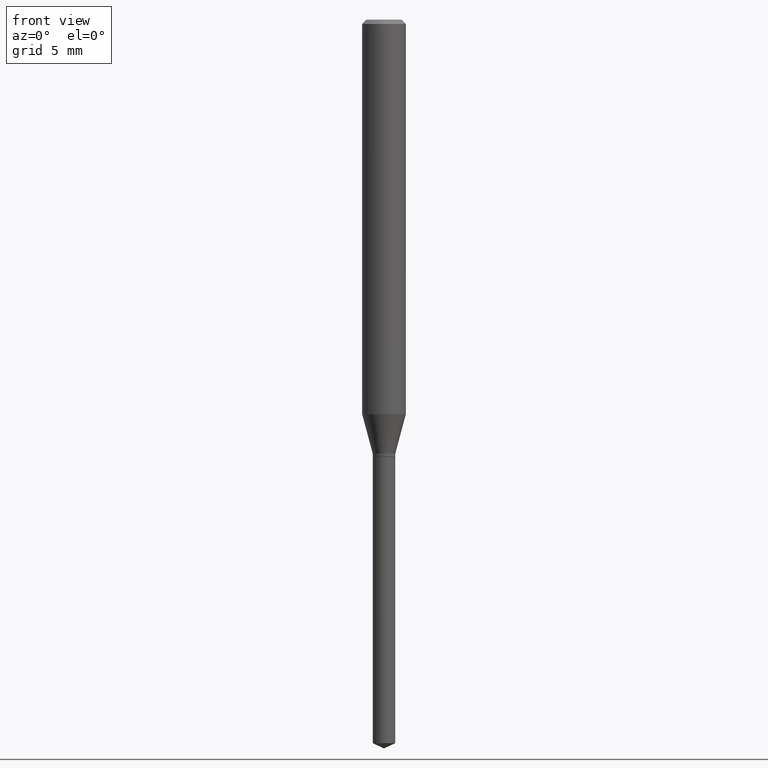
[diagram: clean part render]
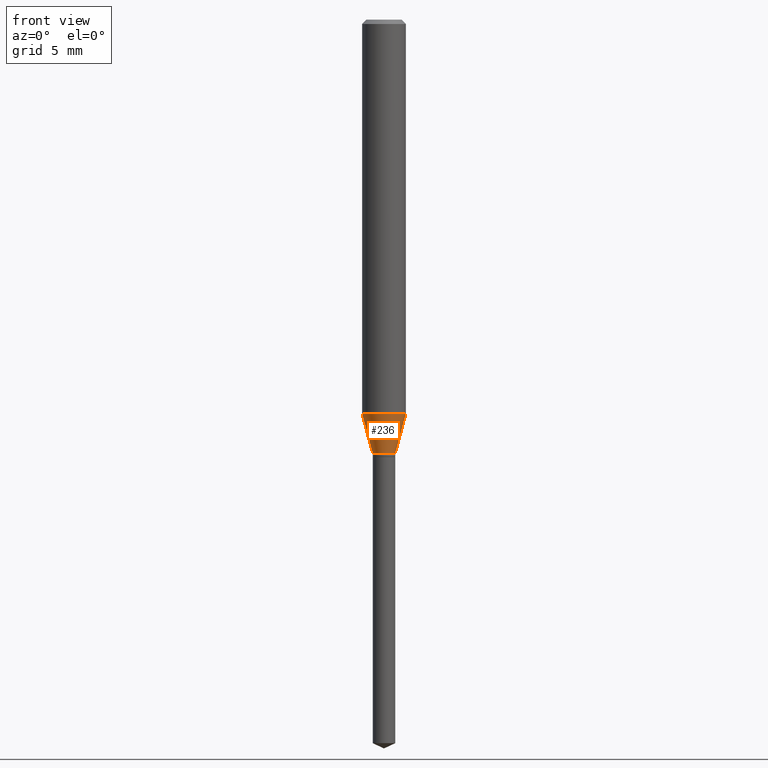
[diagram: same view with one face highlighted and labeled with its STEP entity id]
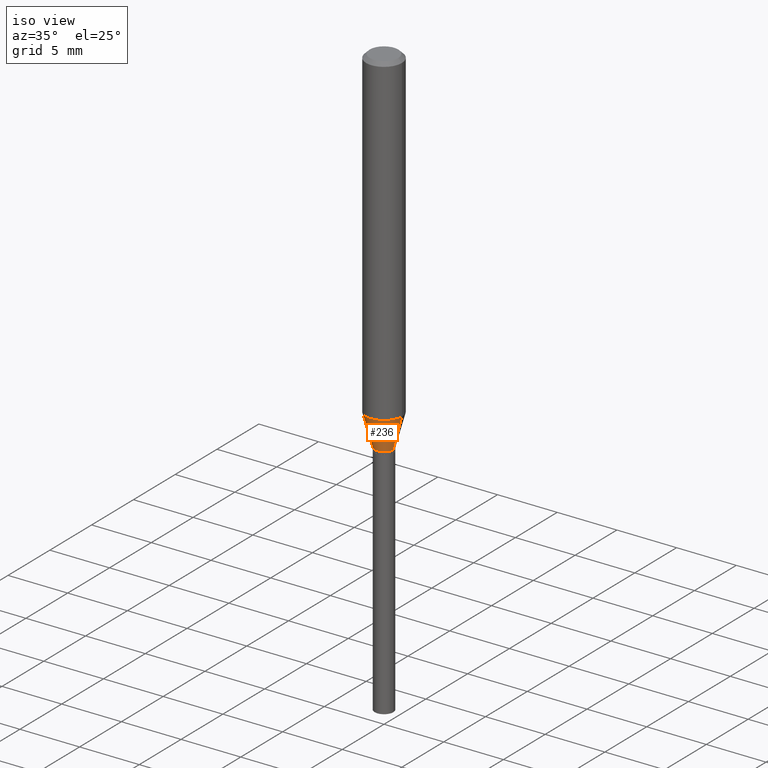
[diagram: same view with one face highlighted and labeled with its STEP entity id]
A machine part, front view. The second image highlights one B-rep face of the part: STEP entity #236.
A second angle (iso view) of the same face is appended — the face is thin or edge-on in the first view.
In plain terms, the highlighted conical surface has half-angle 15 deg.
Its self-contained STEP definition (entity closure, byte-faithful):
#6 = EDGE_CURVE ( 'NONE', #333, #372, #239, .T. ) ;
#7 = AXIS2_PLACEMENT_3D ( 'NONE', #126, #177, #366 ) ;
#17 = LINE ( 'NONE', #468, #97 ) ;
#38 = CARTESIAN_POINT ( 'NONE',  ( -0.05905000000000013710, -3.301819723023976134E-15, -1.065849949443908429 ) ) ;
#47 = EDGE_CURVE ( 'NONE', #231, #252, #164, .T. ) ;
#52 = EDGE_CURVE ( 'NONE', #333, #231, #17, .T. ) ;
#62 = DIRECTION ( 'NONE',  ( -2.445468806185136597E-29, 3.491481338843145583E-15, 1.000000000000000000 ) ) ;
#77 = AXIS2_PLACEMENT_3D ( 'NONE', #326, #250, #248 ) ;
#97 = VECTOR ( 'NONE', #124, 39.37007874015748854 ) ;
#104 = CARTESIAN_POINT ( 'NONE',  ( 0.05905000000000013710, -4.133739154607691731E-15, -1.065849949443908429 ) ) ;
#124 = DIRECTION ( 'NONE',  ( -0.2588190451025211836, 5.211531920934547886E-15, 0.9659258262890679791 ) ) ;
#126 = CARTESIAN_POINT ( 'NONE',  ( 2.606502803439082942E-29, -3.721395208490316810E-15, -1.065849949443908429 ) ) ;
#130 = ORIENTED_EDGE ( 'NONE', *, *, #52, .F. ) ;
#146 = CARTESIAN_POINT ( 'NONE',  ( 2.867067628371454727E-29, -4.093412721659704073E-15, -1.172400000000000109 ) ) ;
#148 = FACE_OUTER_BOUND ( 'NONE', #184, .T. ) ;
#149 = AXIS2_PLACEMENT_3D ( 'NONE', #146, #62, #379 ) ;
#164 = CIRCLE ( 'NONE', #7, 0.05905000000000013710 ) ;
#177 = DIRECTION ( 'NONE',  ( -2.445468806185136597E-29, 3.491481338843145583E-15, 1.000000000000000000 ) ) ;
#184 = EDGE_LOOP ( 'NONE', ( #130, #301, #411, #420 ) ) ;
#187 = CARTESIAN_POINT ( 'NONE',  ( 0.03050000000000000627, -4.306393083329135397E-15, -1.172400000000000109 ) ) ;
#189 = CARTESIAN_POINT ( 'NONE',  ( -0.03050000000000000627, -3.891885131076841194E-15, -1.172400000000000109 ) ) ;
#199 = VECTOR ( 'NONE', #222, 39.37007874015748854 ) ;
#211 = EDGE_CURVE ( 'NONE', #372, #252, #416, .T. ) ;
#222 = DIRECTION ( 'NONE',  ( 0.2588190451025211836, 1.565188264969622559E-15, 0.9659258262890679791 ) ) ;
#231 = VERTEX_POINT ( 'NONE', #38 ) ;
#236 = ADVANCED_FACE ( 'NONE', ( #148 ), #259, .T. ) ;
#239 = CIRCLE ( 'NONE', #77, 0.03050000000000000627 ) ;
#248 = DIRECTION ( 'NONE',  ( 1.000000000000000000, -6.982962677686267499E-15, 0.000000000000000000 ) ) ;
#250 = DIRECTION ( 'NONE',  ( -2.445468806185136597E-29, 3.491481338843145583E-15, 1.000000000000000000 ) ) ;
#252 = VERTEX_POINT ( 'NONE', #104 ) ;
#259 = CONICAL_SURFACE ( 'NONE', #149, 0.03050000000000000627, 0.2617993877991499074 ) ;
#301 = ORIENTED_EDGE ( 'NONE', *, *, #6, .T. ) ;
#302 = CARTESIAN_POINT ( 'NONE',  ( 0.03050000000000000627, -4.306393083329135397E-15, -1.172400000000000109 ) ) ;
#326 = CARTESIAN_POINT ( 'NONE',  ( 2.867067628371454727E-29, -4.093412721659704073E-15, -1.172400000000000109 ) ) ;
#333 = VERTEX_POINT ( 'NONE', #189 ) ;
#366 = DIRECTION ( 'NONE',  ( 1.000000000000000000, -6.982962677686264344E-15, 0.000000000000000000 ) ) ;
#372 = VERTEX_POINT ( 'NONE', #302 ) ;
#379 = DIRECTION ( 'NONE',  ( 1.000000000000000000, -6.982962677686267499E-15, 0.000000000000000000 ) ) ;
#411 = ORIENTED_EDGE ( 'NONE', *, *, #211, .T. ) ;
#416 = LINE ( 'NONE', #187, #199 ) ;
#420 = ORIENTED_EDGE ( 'NONE', *, *, #47, .F. ) ;
#468 = CARTESIAN_POINT ( 'NONE',  ( -0.03050000000000000627, -3.876697187252873719E-15, -1.172400000000000109 ) ) ;